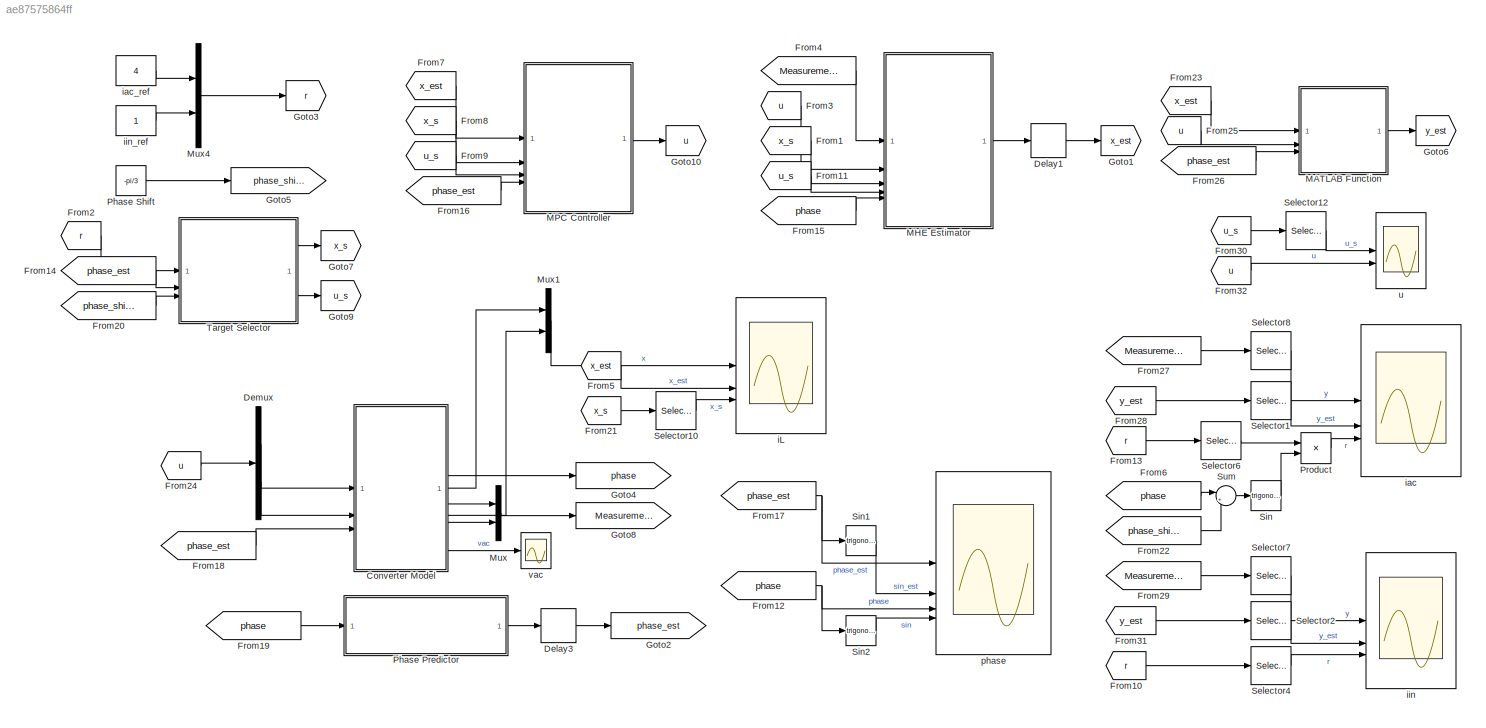
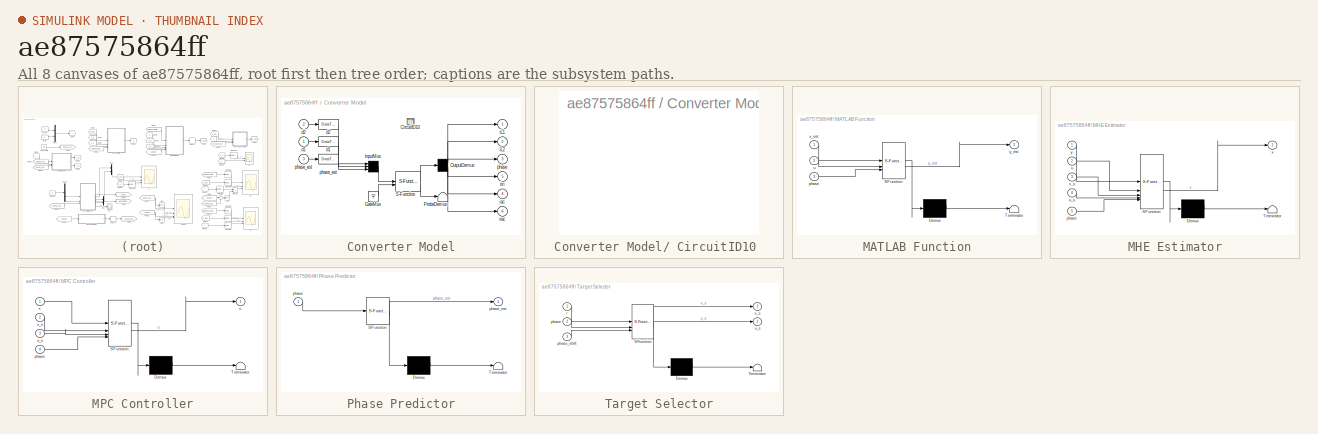
[diagram: thumbnail index - all 8 canvases of the model, root first then tree order]
MODEL slx_ae87575864ff
KIND model
CONFIG AbsTol = auto
CONFIG EnableMultiTasking = off
CONFIG FixedStep = p.Ts
CONFIG MaxStep = auto
CONFIG MinStep = auto
CONFIG RelTol = 1e-3
CONFIG SampleTimeConstraint = Unconstrained
CONFIG SolverName = ode45
CONFIG StartTime = 0.0
CONFIG StopTime = p.Tmax
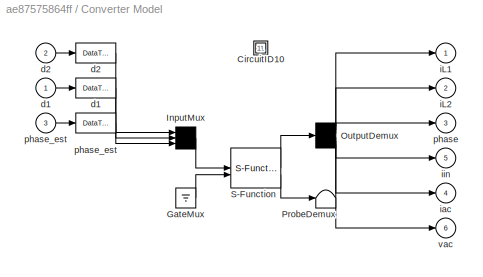
BLOCK [SubSystem] Converter Model
  CopyFcn = plecs('sl', 203);
  DeleteFcn = plecs('sl', 205);
  DestroyFcn = plecs('sl', 207);
  ErrorFcn = plerrorfcn
  InitFcn = plecs('sl', 214);
  LoadFcn = plecs('sl', 200);
  NameChangeFcn = plecs('sl', 210);
  OpenFcn = plecs('sl', 202);
  PostSaveFcn = plecs('sl', 201);
  PreCopyFcn = plecs('sl', 216);
  PreSaveFcn = plecs('sl', 211);
  ShowPortLabels = FromPortBlockName
  StartFcn = plecs('sl', 208);
  StopFcn = plecs('sl', 209);
  UndoDeleteFcn = plecs('sl', 206);
BLOCK [SubSystem] Converter Model/ CircuitID10 
BLOCK [Ground] Converter Model/ GateMux 
BLOCK [Mux] Converter Model/ InputMux 
  Inputs = [ 1 1 1 ]
BLOCK [Demux] Converter Model/ OutputDemux 
  Outputs = [ 1 1 1 1 1 1 ]
BLOCK [Terminator] Converter Model/ ProbeDemux 
BLOCK [S-Function] Converter Model/ S-Function 
  EnableBusSupport = off
  FunctionName = plecs
  SFcnIsStateOwnerBlock = off
  SFunctionDeploymentMode = off
BLOCK [DataTypeConversion] Converter Model/ d1 
BLOCK [DataTypeConversion] Converter Model/ d2 
BLOCK [DataTypeConversion] Converter Model/ phase_est 
BLOCK [Inport] Converter Model/d1
  PortDimensions = 1
BLOCK [Inport] Converter Model/d2
  Port = 2
  PortDimensions = 1
BLOCK [Outport] Converter Model/iL1
  PortDimensions = 1
BLOCK [Outport] Converter Model/iL2
  Port = 2
  PortDimensions = 1
BLOCK [Outport] Converter Model/iac
  Port = 4
  PortDimensions = 1
BLOCK [Outport] Converter Model/iin
  Port = 5
  PortDimensions = 1
BLOCK [Outport] Converter Model/phase
  Port = 3
  PortDimensions = 1
BLOCK [Inport] Converter Model/phase_est
  Port = 3
  PortDimensions = 1
BLOCK [Outport] Converter Model/vac
  Port = 6
  PortDimensions = 1
BLOCK [Delay] Delay1
  DelayLength = 1
  InitialCondition = x_0
  InputPortMap = u0
  SampleTime = p.Ts
BLOCK [Delay] Delay3
  DelayLength = 1
  InitialCondition = phase_0
  InputPortMap = u0
  SampleTime = p.Ts
BLOCK [Demux] Demux
  Outputs = nu
BLOCK [From] From1
  GotoTag = x_s
BLOCK [From] From10
  GotoTag = r
BLOCK [From] From11
  GotoTag = u_s
BLOCK [From] From12
  GotoTag = phase
BLOCK [From] From13
  GotoTag = r
BLOCK [From] From14
  GotoTag = phase_est
BLOCK [From] From15
  GotoTag = phase
BLOCK [From] From16
  GotoTag = phase_est
BLOCK [From] From17
  GotoTag = phase_est
BLOCK [From] From18
  GotoTag = phase_est
BLOCK [From] From19
  GotoTag = phase
BLOCK [From] From2
  GotoTag = r
BLOCK [From] From20
  GotoTag = phase_shift
BLOCK [From] From21
  GotoTag = x_s
BLOCK [From] From22
  GotoTag = phase_shift
BLOCK [From] From23
  GotoTag = x_est
BLOCK [From] From24
  GotoTag = u
BLOCK [From] From25
  GotoTag = u
BLOCK [From] From26
  GotoTag = phase_est
BLOCK [From] From27
  GotoTag = Measurements
BLOCK [From] From28
  GotoTag = y_est
BLOCK [From] From29
  GotoTag = Measurements
BLOCK [From] From3
  GotoTag = u
BLOCK [From] From30
  GotoTag = u_s
BLOCK [From] From31
  GotoTag = y_est
BLOCK [From] From32
  GotoTag = u
BLOCK [From] From4
  GotoTag = Measurements
BLOCK [From] From5
  GotoTag = x_est
BLOCK [From] From6
  GotoTag = phase
BLOCK [From] From7
  GotoTag = x_est
BLOCK [From] From8
  GotoTag = x_s
BLOCK [From] From9
  GotoTag = u_s
BLOCK [Goto] Goto1
  GotoTag = x_est
BLOCK [Goto] Goto10
  GotoTag = u
BLOCK [Goto] Goto2
  GotoTag = phase_est
BLOCK [Goto] Goto3
  GotoTag = r
BLOCK [Goto] Goto4
  GotoTag = phase
BLOCK [Goto] Goto5
  GotoTag = phase_shift
BLOCK [Goto] Goto6
  GotoTag = y_est
BLOCK [Goto] Goto7
  GotoTag = x_s
BLOCK [Goto] Goto8
  GotoTag = Measurements
BLOCK [Goto] Goto9
  GotoTag = u_s
BLOCK [SubSystem] MATLAB Function
  ErrorFcn = Stateflow.Translate.translate
  PermitHierarchicalResolution = ExplicitOnly
  SFBlockType = MATLAB Function
  SystemSampleTime = p.Ts
  TreatAsAtomicUnit = on
BLOCK [Demux] MATLAB Function/ Demux 
  Outputs = 1
BLOCK [S-Function] MATLAB Function/ SFunction 
  EnableBusSupport = on
  FunctionName = sf_sfun
  Parameters = p
  PortCounts = [3 2]
  SFcnIsStateOwnerBlock = off
  SFunctionDeploymentMode = off
  Tag = Stateflow S-Function 5
BLOCK [Terminator] MATLAB Function/ Terminator 
BLOCK [Inport] MATLAB Function/phase
  Port = 3
BLOCK [Inport] MATLAB Function/u
  Port = 2
BLOCK [Inport] MATLAB Function/x_est
BLOCK [Outport] MATLAB Function/y_est
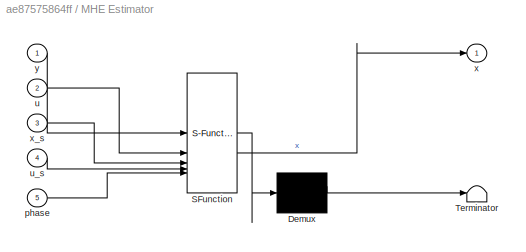
BLOCK [SubSystem] MHE Estimator
  ErrorFcn = Stateflow.Translate.translate
  PermitHierarchicalResolution = ExplicitOnly
  SFBlockType = MATLAB Function
  SystemSampleTime = p.Ts
  TreatAsAtomicUnit = on
BLOCK [Demux] MHE Estimator/ Demux 
  Outputs = 1
BLOCK [S-Function] MHE Estimator/ SFunction 
  EnableBusSupport = on
  FunctionName = sf_sfun
  Parameters = mhe
  PortCounts = [5 2]
  SFcnIsStateOwnerBlock = off
  SFunctionDeploymentMode = off
  Tag = Stateflow S-Function 3
BLOCK [Terminator] MHE Estimator/ Terminator 
BLOCK [Inport] MHE Estimator/phase
  Port = 5
BLOCK [Inport] MHE Estimator/u
  Port = 2
BLOCK [Inport] MHE Estimator/u_s
  Port = 4
BLOCK [Outport] MHE Estimator/x
BLOCK [Inport] MHE Estimator/x_s
  Port = 3
BLOCK [Inport] MHE Estimator/y
BLOCK [SubSystem] MPC Controller
  ErrorFcn = Stateflow.Translate.translate
  PermitHierarchicalResolution = ExplicitOnly
  SFBlockType = MATLAB Function
  SystemSampleTime = p.Ts
  TreatAsAtomicUnit = on
BLOCK [Demux] MPC Controller/ Demux 
  Outputs = 1
BLOCK [S-Function] MPC Controller/ SFunction 
  EnableBusSupport = on
  FunctionName = sf_sfun
  Parameters = mpc
  PortCounts = [4 2]
  SFcnIsStateOwnerBlock = off
  SFunctionDeploymentMode = off
  Tag = Stateflow S-Function 2
BLOCK [Terminator] MPC Controller/ Terminator 
BLOCK [Inport] MPC Controller/phase
  Port = 4
BLOCK [Outport] MPC Controller/u
BLOCK [Inport] MPC Controller/u_s
  Port = 3
BLOCK [Inport] MPC Controller/x
BLOCK [Inport] MPC Controller/x_s
  Port = 2
BLOCK [Mux] Mux
  DisplayOption = bar
  Inputs = ny
BLOCK [Mux] Mux1
  DisplayOption = bar
  Inputs = nx
BLOCK [Mux] Mux4
  DisplayOption = bar
  Inputs = ny
BLOCK [SubSystem] Phase Predictor
  ErrorFcn = Stateflow.Translate.translate
  PermitHierarchicalResolution = ExplicitOnly
  SFBlockType = MATLAB Function
  SystemSampleTime = p.Ts
  TreatAsAtomicUnit = on
BLOCK [Demux] Phase Predictor/ Demux 
  Outputs = 1
BLOCK [S-Function] Phase Predictor/ SFunction 
  EnableBusSupport = on
  FunctionName = sf_sfun
  Parameters = p
  PortCounts = [1 2]
  SFcnIsStateOwnerBlock = off
  SFunctionDeploymentMode = off
  Tag = Stateflow S-Function 4
BLOCK [Terminator] Phase Predictor/ Terminator 
BLOCK [Inport] Phase Predictor/phase
BLOCK [Outport] Phase Predictor/phase_est
BLOCK [Constant] Phase Shift
  SampleTime = p.Ts
  Value = -pi/3
BLOCK [Product] Product
BLOCK [Selector] Selector1
  IndexOptions = Index vector (dialog)
  Indices = 1
  InputPortWidth = ny
  OutputSizes = 1
BLOCK [Selector] Selector10
  IndexOptions = Index vector (dialog)
  Indices = [1:2]
  InputPortWidth = (N+1)*nx
  OutputSizes = 1
BLOCK [Selector] Selector12
  IndexOptions = Index vector (dialog)
  Indices = [1:nu]
  InputPortWidth = (N+1)*nu
  OutputSizes = 1
BLOCK [Selector] Selector2
  IndexOptions = Index vector (dialog)
  Indices = 2
  InputPortWidth = ny
  OutputSizes = 1
BLOCK [Selector] Selector4
  IndexOptions = Index vector (dialog)
  Indices = 2
  InputPortWidth = ny
  OutputSizes = 1
BLOCK [Selector] Selector6
  IndexOptions = Index vector (dialog)
  Indices = 1
  InputPortWidth = ny
  OutputSizes = 1
BLOCK [Selector] Selector7
  IndexOptions = Index vector (dialog)
  Indices = 2
  InputPortWidth = ny
  OutputSizes = 1
BLOCK [Selector] Selector8
  IndexOptions = Index vector (dialog)
  Indices = 1
  InputPortWidth = ny
  OutputSizes = 1
BLOCK [Trigonometry] Sin
BLOCK [Trigonometry] Sin1
BLOCK [Trigonometry] Sin2
BLOCK [Sum] Sum
  Inputs = |++
BLOCK [SubSystem] Target Selector
  ErrorFcn = Stateflow.Translate.translate
  PermitHierarchicalResolution = ExplicitOnly
  SFBlockType = MATLAB Function
  SystemSampleTime = p.Ts
  TreatAsAtomicUnit = on
BLOCK [Demux] Target Selector/ Demux 
  Outputs = 1
BLOCK [S-Function] Target Selector/ SFunction 
  EnableBusSupport = on
  FunctionName = sf_sfun
  Parameters = mpc
  PortCounts = [3 3]
  SFcnIsStateOwnerBlock = off
  SFunctionDeploymentMode = off
  Tag = Stateflow S-Function 1
BLOCK [Terminator] Target Selector/ Terminator 
BLOCK [Inport] Target Selector/phase
  Port = 2
BLOCK [Inport] Target Selector/phase_shift
  Port = 3
BLOCK [Inport] Target Selector/r
BLOCK [Outport] Target Selector/u_s
  Port = 2
BLOCK [Outport] Target Selector/x_s
BLOCK [Scope] iL
  Floating = off
  NumInputPorts = 3
  ScopeSpecificationString = Simulink.scopes.TimeScopeBlockCfg('CurrentConfiguration', extmgr.ConfigurationSet(extmgr.Configuration('Core','General UI',true),extmgr.Configuration('Core','Source UI',true),extmgr.Configuration('Sources','WiredSimulink',true,'DataLoggingVariableName','iL','DataLogging',true),extmgr.Configuration('Visuals','Time Domain',true,'SerializedDisplays',{struct('MinYLimReal','-5.53204','MaxYLimReal','6.5...<+2502ch>
BLOCK [Scope] iac
  Floating = off
  NumInputPorts = 3
  ScopeSpecificationString = Simulink.scopes.TimeScopeBlockCfg('CurrentConfiguration', extmgr.ConfigurationSet(extmgr.Configuration('Core','General UI',true),extmgr.Configuration('Core','Source UI',true),extmgr.Configuration('Sources','WiredSimulink',true,'DataLoggingVariableName','iac','DataLogging',true),extmgr.Configuration('Visuals','Time Domain',true,'SerializedDisplays',{struct('MinYLimReal','-5.04282','MaxYLimReal','5....<+2472ch>
BLOCK [Constant] iac_ref
  SampleTime = p.Ts
  Value = 4
BLOCK [Scope] iin
  Floating = off
  NumInputPorts = 3
  ScopeSpecificationString = Simulink.scopes.TimeScopeBlockCfg('CurrentConfiguration', extmgr.ConfigurationSet(extmgr.Configuration('Core','General UI',true),extmgr.Configuration('Core','Source UI',true),extmgr.Configuration('Sources','WiredSimulink',true,'DataLoggingVariableName','iin','DataLogging',true),extmgr.Configuration('Visuals','Time Domain',true,'SerializedDisplays',{struct('MinYLimReal','-1.05514','MaxYLimReal','3....<+2472ch>
BLOCK [Constant] iin_ref
  SampleTime = p.Ts
BLOCK [Scope] phase
  Floating = off
  NumInputPorts = 4
  ScopeSpecificationString = Simulink.scopes.TimeScopeBlockCfg('CurrentConfiguration', extmgr.ConfigurationSet(extmgr.Configuration('Core','General UI',true),extmgr.Configuration('Core','Source UI',true),extmgr.Configuration('Sources','WiredSimulink',true,'DataLoggingVariableName','phase'),extmgr.Configuration('Visuals','Time Domain',true,'SerializedDisplays',{struct('MinYLimReal','-1.9104','MaxYLimReal','7.19358','YLabelReal...<+2473ch>
BLOCK [Scope] u
  Floating = off
  NumInputPorts = 2
  ScopeSpecificationString = Simulink.scopes.TimeScopeBlockCfg('CurrentConfiguration', extmgr.ConfigurationSet(extmgr.Configuration('Core','General UI',true),extmgr.Configuration('Core','Source UI',true),extmgr.Configuration('Sources','WiredSimulink',true,'DataLoggingVariableName','u','DataLogging',true),extmgr.Configuration('Visuals','Time Domain',true,'SerializedDisplays',{struct('MinYLimReal','-0.08221','MaxYLimReal','0.73...<+2115ch>
BLOCK [Scope] vac
  Floating = off
  NumInputPorts = 1
  ScopeSpecificationString = Simulink.scopes.TimeScopeBlockCfg('CurrentConfiguration', extmgr.ConfigurationSet(extmgr.Configuration('Core','General UI',true),extmgr.Configuration('Core','Source UI',true),extmgr.Configuration('Sources','WiredSimulink',true,'DataLoggingVariableName','vac','DataLogging',true),extmgr.Configuration('Visuals','Time Domain',true,'SerializedDisplays',{struct('MinYLimReal','-406.25','MaxYLimReal','406...<+2091ch>
LINE Converter Model:1 -> Mux1:1
LINE Converter Model:2 -> Mux1:2
LINE Converter Model:3 -> Goto4:1
LINE Converter Model:4 -> Mux:1
LINE Converter Model:5 -> Mux:2
LINE Converter Model:6 -> vac:1
LINE Delay1:1 -> Goto1:1
LINE Delay3:1 -> Goto2:1
LINE Demux:1 -> Converter Model:1
LINE Demux:2 -> Converter Model:2
LINE From10:1 -> Selector4:1
LINE From11:1 -> MHE Estimator:4
NET From12:1 -> Sin2:1, phase:3
LINE From13:1 -> Selector6:1
LINE From14:1 -> Target Selector:2
LINE From15:1 -> MHE Estimator:5
LINE From16:1 -> MPC Controller:4
NET From17:1 -> Sin1:1, phase:1
LINE From18:1 -> Converter Model:3
LINE From19:1 -> Phase Predictor:1
LINE From1:1 -> MHE Estimator:3
LINE From20:1 -> Target Selector:3
LINE From21:1 -> Selector10:1
LINE From22:1 -> Sum:2
LINE From23:1 -> MATLAB Function:1
LINE From24:1 -> Demux:1
LINE From25:1 -> MATLAB Function:2
LINE From26:1 -> MATLAB Function:3
LINE From27:1 -> Selector8:1
LINE From28:1 -> Selector1:1
LINE From29:1 -> Selector7:1
LINE From2:1 -> Target Selector:1
LINE From30:1 -> Selector12:1
LINE From31:1 -> Selector2:1
LINE From32:1 -> u:2
LINE From3:1 -> MHE Estimator:2
LINE From4:1 -> MHE Estimator:1
LINE From5:1 -> iL:2
LINE From6:1 -> Sum:1
LINE From7:1 -> MPC Controller:1
LINE From8:1 -> MPC Controller:2
LINE From9:1 -> MPC Controller:3
LINE MATLAB Function:1 -> Goto6:1
LINE MHE Estimator:1 -> Delay1:1
LINE MPC Controller:1 -> Goto10:1
LINE Mux1:1 -> iL:1
LINE Mux4:1 -> Goto3:1
LINE Mux:1 -> Goto8:1
LINE Phase Predictor:1 -> Delay3:1
LINE Phase Shift:1 -> Goto5:1
LINE Product:1 -> iac:3
LINE Selector10:1 -> iL:3
LINE Selector12:1 -> u:1
LINE Selector1:1 -> iac:2
LINE Selector2:1 -> iin:2
LINE Selector4:1 -> iin:3
LINE Selector6:1 -> Product:1
LINE Selector7:1 -> iin:1
LINE Selector8:1 -> iac:1
LINE Sin1:1 -> phase:2
LINE Sin2:1 -> phase:4
LINE Sin:1 -> Product:2
LINE Sum:1 -> Sin:1
LINE Target Selector:1 -> Goto7:1
LINE Target Selector:2 -> Goto9:1
LINE iac_ref:1 -> Mux4:1
LINE iin_ref:1 -> Mux4:2
note: NET lines group one-source signal fan-out (src -> all destinations, sorted); 1:1 wires keep LINE
CHART Target Selector states=1 transitions=1
  STATE_LABEL 'eML_blk_kernel()'
  STATE_LABEL "SCRIPT:\nfunction [x_s, u_s] = select_target(r, phase, phase_shift, mpc)\n\noptions = optimoptions('fsolve', 'Algorithm', 'levenberg-marquardt');\n\np = mpc.p;\nf = @(x, u, phi) dynamics_wrapper(x, u, phi, p);\nk1 = @(x, u, phi) f(x, u, phi);\nk2 = @(x, u, phi) f(x + p.Ts/2*k1(x,u,phi), u, phi);\nk3 = @(x, u, phi) f(x + p.Ts/2*k2(x,u,phi), u, phi);\nk4 = @(x, u, phi) f(x + p.Ts*k3(x,u,phi), u, phi);\nfd = @(...<+2047ch>"
CHART MPC Controller states=1 transitions=1
  STATE_LABEL 'eML_blk_kernel()'
  STATE_LABEL "SCRIPT:\nfunction u = MPC(x, x_s, u_s, phase, mpc)\n\ncoder.extrinsic('fprintf');\noptions = optimoptions('fmincon', 'Algorithm', 'sqp');\n\np = mpc.p;\nf = @(x, u, phi) dynamics_wrapper(x, u, phi, p);\nk1 = @(x, u, phi) f(x, u, phi);\nk2 = @(x, u, phi) f(x + p.Ts/2*k1(x,u,phi), u, phi);\nk3 = @(x, u, phi) f(x + p.Ts/2*k2(x,u,phi), u, phi);\nk4 = @(x, u, phi) f(x + p.Ts*k3(x,u,phi), u, phi);\nfd = @(x, u, phi...<+1679ch>"
CHART MHE Estimator states=1 transitions=1
  STATE_LABEL 'eML_blk_kernel()'
  STATE_LABEL "SCRIPT:\nfunction x = MHE(y, u, x_s, u_s, phase, mhe)\n\noptions = optimoptions('fmincon', 'Algorithm', 'sqp');\n\np = mhe.p;\nf = @(x, u, phi) dynamics_wrapper(x, u, phi, p);\nk1 = @(x, u, phi) f(x, u, phi);\nk2 = @(x, u, phi) f(x + p.Ts/2*k1(x,u,phi), u, phi);\nk3 = @(x, u, phi) f(x + p.Ts/2*k2(x,u,phi), u, phi);\nk4 = @(x, u, phi) f(x + p.Ts*k3(x,u,phi), u, phi);\nfd = @(x, u, phi) x + p.Ts/6*(k1(x,u,phi)...<+2700ch>"
CHART Phase Predictor states=1 transitions=1
  STATE_LABEL 'eML_blk_kernel()'
  STATE_LABEL 'SCRIPT:\nfunction phase_est = predict_phase(phase, p)\nphase_est = mod(phase + 2*pi*p.fgrid*p.Ts, 2*pi);\nend\n'
CHART MATLAB Function states=1 transitions=1
  STATE_LABEL 'eML_blk_kernel()'
  STATE_LABEL 'SCRIPT:\nfunction y_est = gd(x_est, u, phase, p)\n\ny_est = output_wrapper(x_est, u, phase, p);\n\nfunction y = output_wrapper(x, u, phi, p)\n    if phi <= pi\n        [~, y] = MIMO_Case_A_dynamics_SM1(x, u, phi, p);\n    else\n        [~, y] = MIMO_Case_A_dynamics_SM2(x, u, phi, p);\n    end\nend\n\nend\n'
CHART  states=0 transitions=0
CHART  states=0 transitions=0
CHART  states=0 transitions=0
CHART  states=0 transitions=0
CHART  states=0 transitions=0
